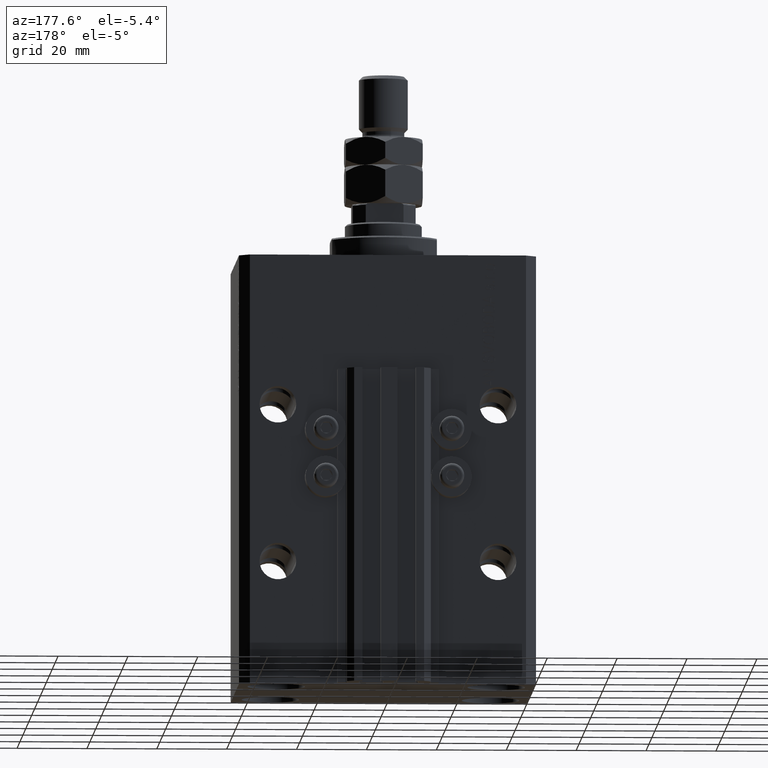
[diagram: clean part render]
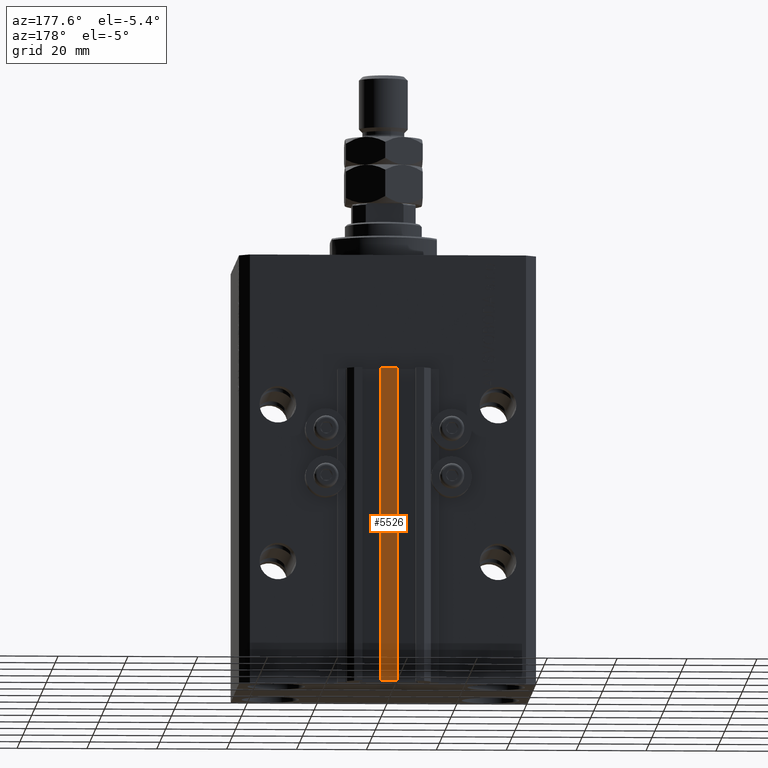
[diagram: same view with one face highlighted and labeled with its STEP entity id]
A machine part, auxiliary view. The second image highlights one B-rep face of the part: STEP entity #5526.
In plain terms, the highlighted planar face has unit normal (0, -1, 0).
Its self-contained STEP definition (entity closure, byte-faithful):
#309 = ORIENTED_EDGE ( 'NONE', *, *, #8829, .F. ) ;
#4923 = DIRECTION ( 'NONE',  ( 1.000000000000000000, 0.000000000000000000, 0.000000000000000000 ) ) ;
#5526 = ADVANCED_FACE ( 'NONE', ( #42542 ), #15699, .F. ) ;
#7400 = AXIS2_PLACEMENT_3D ( 'NONE', #42039, #39250, #19207 ) ;
#7450 = CARTESIAN_POINT ( 'NONE',  ( -2.350000000000003642, 39.50000000000000711, -123.0000000000000000 ) ) ;
#7602 = CARTESIAN_POINT ( 'NONE',  ( 2.349999999999999645, 39.50000000000000711, -33.00000000000000000 ) ) ;
#8829 = EDGE_CURVE ( 'NONE', #22918, #39887, #14386, .T. ) ;
#9386 = DIRECTION ( 'NONE',  ( 0.000000000000000000, 0.000000000000000000, 1.000000000000000000 ) ) ;
#9400 = VECTOR ( 'NONE', #4923, 1000.000000000000000 ) ;
#10621 = DIRECTION ( 'NONE',  ( 0.000000000000000000, 0.000000000000000000, 1.000000000000000000 ) ) ;
#10870 = CARTESIAN_POINT ( 'NONE',  ( 2.349999999999999645, 39.50000000000000711, -123.0000000000000000 ) ) ;
#11532 = VECTOR ( 'NONE', #9386, 1000.000000000000000 ) ;
#13107 = CARTESIAN_POINT ( 'NONE',  ( 2.349999999999999645, 39.50000000000000711, -123.0000000000000000 ) ) ;
#13484 = ORIENTED_EDGE ( 'NONE', *, *, #16340, .T. ) ;
#14386 = LINE ( 'NONE', #10870, #25088 ) ;
#15378 = VERTEX_POINT ( 'NONE', #35735 ) ;
#15517 = LINE ( 'NONE', #42853, #9400 ) ;
#15699 = PLANE ( 'NONE',  #7400 ) ;
#16292 = VERTEX_POINT ( 'NONE', #7450 ) ;
#16340 = EDGE_CURVE ( 'NONE', #15378, #39887, #15517, .T. ) ;
#16889 = EDGE_CURVE ( 'NONE', #16292, #15378, #24469, .T. ) ;
#18421 = LINE ( 'NONE', #25704, #27035 ) ;
#19207 = DIRECTION ( 'NONE',  ( 0.000000000000000000, -0.000000000000000000, -1.000000000000000000 ) ) ;
#21459 = ORIENTED_EDGE ( 'NONE', *, *, #16889, .T. ) ;
#22918 = VERTEX_POINT ( 'NONE', #13107 ) ;
#24469 = LINE ( 'NONE', #43775, #11532 ) ;
#25088 = VECTOR ( 'NONE', #10621, 1000.000000000000000 ) ;
#25704 = CARTESIAN_POINT ( 'NONE',  ( -2.350000000000003642, 39.50000000000000711, -123.0000000000000000 ) ) ;
#27035 = VECTOR ( 'NONE', #40498, 1000.000000000000000 ) ;
#28558 = EDGE_CURVE ( 'NONE', #16292, #22918, #18421, .T. ) ;
#35735 = CARTESIAN_POINT ( 'NONE',  ( -2.350000000000003642, 39.50000000000000711, -33.00000000000000000 ) ) ;
#39250 = DIRECTION ( 'NONE',  ( 0.000000000000000000, -1.000000000000000000, 0.000000000000000000 ) ) ;
#39887 = VERTEX_POINT ( 'NONE', #7602 ) ;
#40498 = DIRECTION ( 'NONE',  ( 1.000000000000000000, 0.000000000000000000, 0.000000000000000000 ) ) ;
#42039 = CARTESIAN_POINT ( 'NONE',  ( -2.350000000000003642, 39.50000000000000711, -123.0000000000000000 ) ) ;
#42542 = FACE_OUTER_BOUND ( 'NONE', #42931, .T. ) ;
#42853 = CARTESIAN_POINT ( 'NONE',  ( -2.350000000000003642, 39.50000000000000711, -33.00000000000000000 ) ) ;
#42931 = EDGE_LOOP ( 'NONE', ( #13484, #309, #46326, #21459 ) ) ;
#43775 = CARTESIAN_POINT ( 'NONE',  ( -2.350000000000003642, 39.50000000000000711, -123.0000000000000000 ) ) ;
#46326 = ORIENTED_EDGE ( 'NONE', *, *, #28558, .F. ) ;